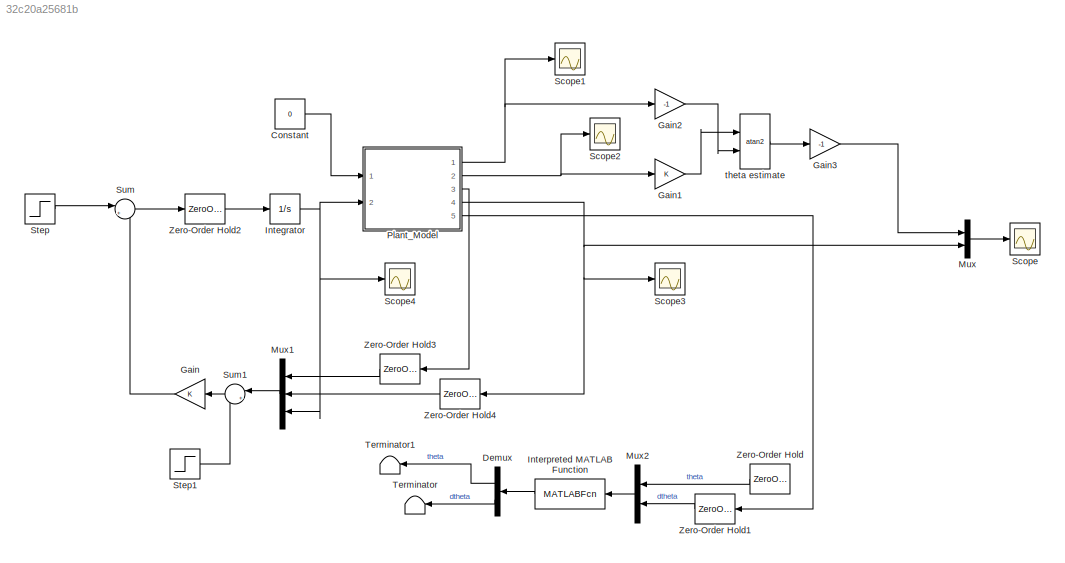
MODEL slx_32c20a25681b
KIND model
CONFIG AbsTol = auto
CONFIG EnableMultiTasking = off
CONFIG FixedStep = auto
CONFIG MaxStep = auto
CONFIG MinStep = auto
CONFIG RelTol = 1e-3
CONFIG SampleTimeConstraint = Unconstrained
CONFIG Solver = VariableStepAuto
CONFIG SolverName = VariableStepAuto
CONFIG StartTime = 0.0
CONFIG StopTime = 60
BLOCK [Constant] Constant
  Value = 0
BLOCK [Demux] Demux
  DisplayOption = bar
  Outputs = 2
  Ports = [1, 2]
BLOCK [Gain] Gain
  Gain = K
  Multiplication = Matrix(K*u)
  OutDataTypeStr = Inherit: Inherit via internal rule
  ParamDataTypeStr = Inherit: Inherit via internal rule
  SaturateOnIntegerOverflow = off
BLOCK [Gain] Gain1
  OutDataTypeStr = Inherit: Inherit via internal rule
  ParamDataTypeStr = Inherit: Inherit via internal rule
  SaturateOnIntegerOverflow = off
BLOCK [Gain] Gain2
  Gain = -1
  OutDataTypeStr = Inherit: Inherit via internal rule
  ParamDataTypeStr = Inherit: Inherit via internal rule
  SaturateOnIntegerOverflow = off
BLOCK [Gain] Gain3
  Gain = -1
  OutDataTypeStr = Inherit: Inherit via internal rule
  ParamDataTypeStr = Inherit: Inherit via internal rule
  SaturateOnIntegerOverflow = off
BLOCK [Integrator] Integrator
  Ports = [1, 1]
BLOCK [MATLABFcn] Interpreted MATLAB Function
  Commented = on
  MATLABFcn = Kalman_Filter
  Output1D = off
  OutputDimensions = [2 1]
  Ports = [1, 1]
BLOCK [Mux] Mux
  DisplayOption = bar
  Inputs = 2
  Ports = [2, 1]
BLOCK [Mux] Mux1
  DisplayOption = bar
  Inputs = 3
  Ports = [3, 1]
BLOCK [Mux] Mux2
  DisplayOption = bar
  Inputs = 2
  Ports = [2, 1]
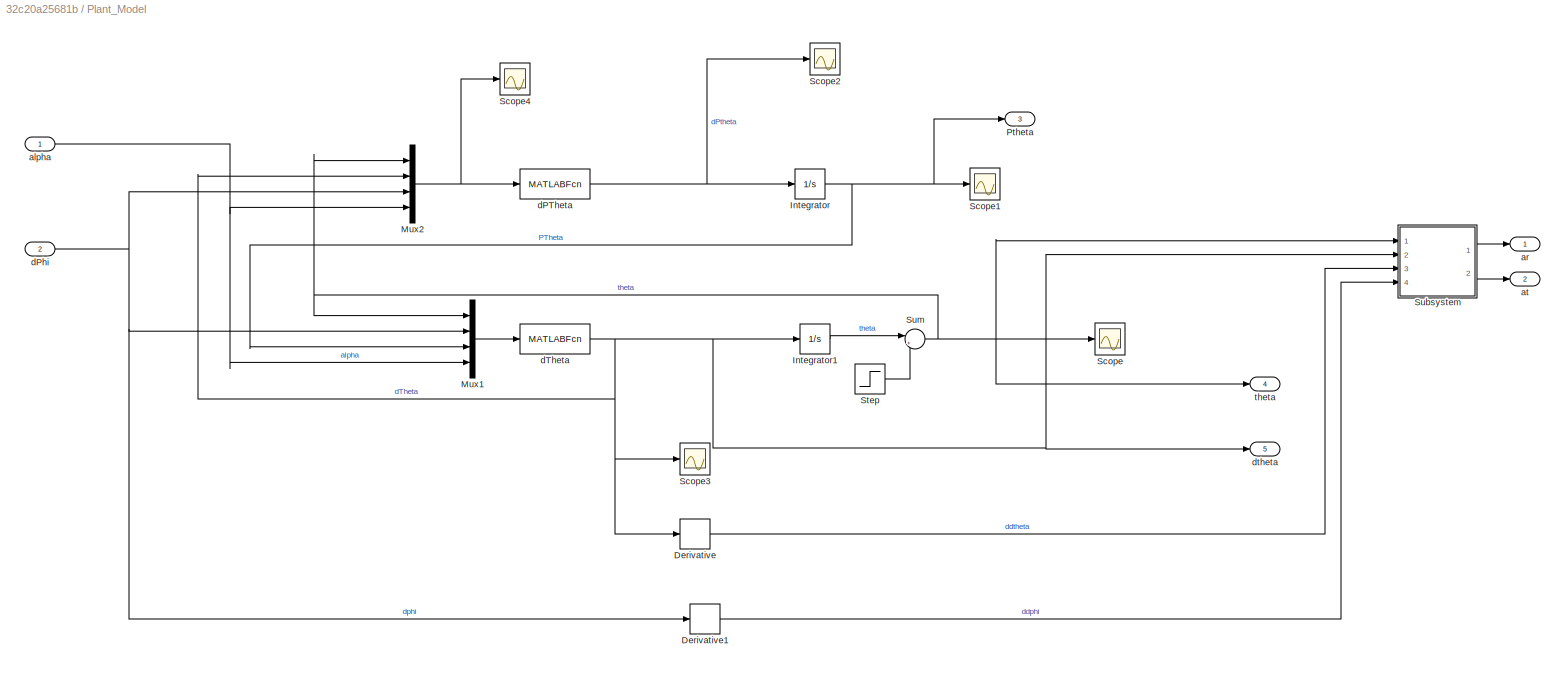
BLOCK [SubSystem] Plant_Model
  Ports = [2, 5]
  RequestExecContextInheritance = off
  Variant = off
BLOCK [Derivative] Plant_Model/Derivative
BLOCK [Derivative] Plant_Model/Derivative1
BLOCK [Integrator] Plant_Model/Integrator
  InitialCondition = Ptheta0
  Ports = [1, 1]
BLOCK [Integrator] Plant_Model/Integrator1
  InitialCondition = 0.1
  Ports = [1, 1]
BLOCK [Mux] Plant_Model/Mux1
  DisplayOption = bar
  Inputs = [1 1 1 1]
  Ports = [4, 1]
BLOCK [Mux] Plant_Model/Mux2
  DisplayOption = bar
  Inputs = [1 1 1 1]
  Ports = [4, 1]
BLOCK [Outport] Plant_Model/Ptheta
  IconDisplay = Port number
  Port = 3
  PortDimensions = [1 1]
BLOCK [Scope] Plant_Model/Scope
  NumInputPorts = 1
  Ports = [1]
  ScopeSpecificationString = Simulink.scopes.TimeScopeBlockCfg('CurrentConfiguration', extmgr.ConfigurationSet(extmgr.Configuration('Core','General UI',true),extmgr.Configuration('Core','Source UI',true),extmgr.Configuration('Sources','WiredSimulink',true),extmgr.Configuration('Visuals','Time Domain',true,'SerializedDisplays',{struct('MinYLimReal','-0.02893','MaxYLimReal','0.11433','YLabelReal','','MinYLimMag','0.00000','MaxY...<+1385ch>
BLOCK [Scope] Plant_Model/Scope1
  NumInputPorts = 1
  Ports = [1]
  ScopeSpecificationString = Simulink.scopes.TimeScopeBlockCfg('CurrentConfiguration', extmgr.ConfigurationSet(extmgr.Configuration('Core','General UI',true),extmgr.Configuration('Core','Source UI',true),extmgr.Configuration('Sources','WiredSimulink',true,'DataLoggingVariableName','ScopeData1'),extmgr.Configuration('Visuals','Time Domain',true,'SerializedDisplays',{struct('MinYLimReal','-195963.3993','MaxYLimReal','248154.423...<+1462ch>
BLOCK [Scope] Plant_Model/Scope2
  NumInputPorts = 1
  Ports = [1]
  ScopeSpecificationString = Simulink.scopes.TimeScopeBlockCfg('CurrentConfiguration', extmgr.ConfigurationSet(extmgr.Configuration('Core','General UI',true),extmgr.Configuration('Core','Source UI',true),extmgr.Configuration('Sources','WiredSimulink',true,'DataLoggingVariableName','ScopeData2'),extmgr.Configuration('Visuals','Time Domain',true,'SerializedDisplays',{struct('MinYLimReal','-2761470967.33558','MaxYLimReal','27610...<+1463ch>
BLOCK [Scope] Plant_Model/Scope3
  NumInputPorts = 1
  Ports = [1]
  ScopeSpecificationString = Simulink.scopes.TimeScopeBlockCfg('CurrentConfiguration', extmgr.ConfigurationSet(extmgr.Configuration('Core','General UI',true),extmgr.Configuration('Core','Source UI',true),extmgr.Configuration('Sources','WiredSimulink',true,'DataLoggingVariableName','ScopeData3'),extmgr.Configuration('Visuals','Time Domain',true,'SerializedDisplays',{struct('MinYLimReal','-40470802508.94521','MaxYLimReal','3642...<+1478ch>
BLOCK [Scope] Plant_Model/Scope4
  NumInputPorts = 1
  Ports = [1]
  ScopeSpecificationString = Simulink.scopes.TimeScopeBlockCfg('CurrentConfiguration', extmgr.ConfigurationSet(extmgr.Configuration('Core','General UI',true),extmgr.Configuration('Core','Source UI',true),extmgr.Configuration('Sources','WiredSimulink',true,'DataLoggingVariableName','ScopeData6'),extmgr.Configuration('Visuals','Time Domain',true,'SerializedDisplays',{struct('MinYLimReal','-53041074534.89084','MaxYLimReal','4773...<+1495ch>
BLOCK [Step] Plant_Model/Step
  After = .1
  SampleTime = 0
  Time = 10
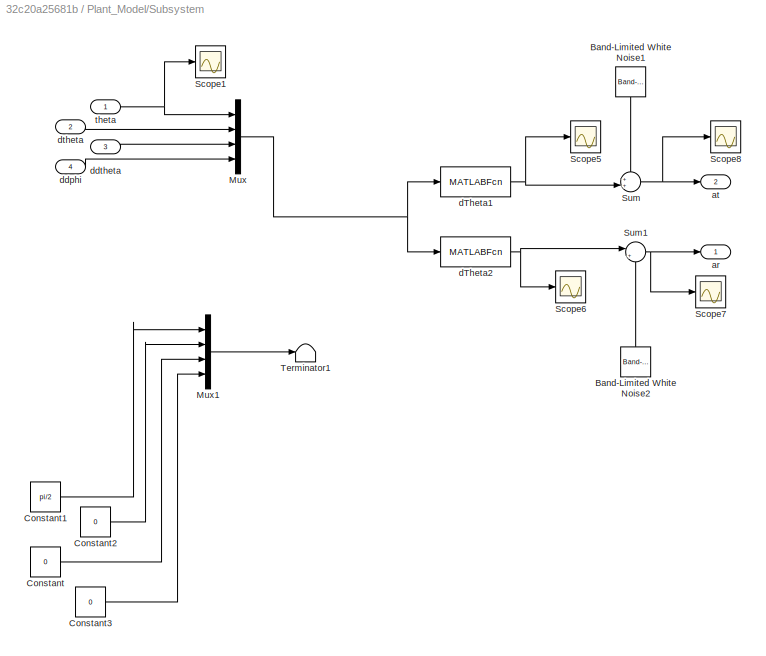
BLOCK [SubSystem] Plant_Model/Subsystem
  Ports = [4, 2]
  RequestExecContextInheritance = off
  Variant = off
BLOCK [Reference] Plant_Model/Subsystem/Band-Limited White Noise1  REF=simulink/Sources/Band-Limited
White Noise
  Commented = on
  Ports = [0, 1]
  SourceBlock = simulink/Sources/Band-Limited\nWhite Noise
  SourceProductBaseCode = SL
  SourceProductName = Simulink
  SourceType = Band-Limited White Noise.
BLOCK [Reference] Plant_Model/Subsystem/Band-Limited White Noise2  REF=simulink/Sources/Band-Limited
White Noise
  Commented = on
  Ports = [0, 1]
  SourceBlock = simulink/Sources/Band-Limited\nWhite Noise
  SourceProductBaseCode = SL
  SourceProductName = Simulink
  SourceType = Band-Limited White Noise.
BLOCK [Constant] Plant_Model/Subsystem/Constant
  Value = 0
BLOCK [Constant] Plant_Model/Subsystem/Constant1
  Value = pi/2
BLOCK [Constant] Plant_Model/Subsystem/Constant2
  Value = 0
BLOCK [Constant] Plant_Model/Subsystem/Constant3
  Value = 0
BLOCK [Mux] Plant_Model/Subsystem/Mux
  DisplayOption = bar
  Ports = [4, 1]
BLOCK [Mux] Plant_Model/Subsystem/Mux1
  DisplayOption = bar
  Ports = [4, 1]
BLOCK [Scope] Plant_Model/Subsystem/Scope1
  NumInputPorts = 1
  Ports = [1]
  ScopeSpecificationString = Simulink.scopes.TimeScopeBlockCfg('CurrentConfiguration', extmgr.ConfigurationSet(extmgr.Configuration('Core','General UI',true),extmgr.Configuration('Core','Source UI',true),extmgr.Configuration('Sources','WiredSimulink',true,'DataLoggingVariableName','ScopeData1'),extmgr.Configuration('Visuals','Time Domain',true,'SerializedDisplays',{struct('MinYLimReal','-1.00000','MaxYLimReal','1.00000','YLab...<+1469ch>
BLOCK [Scope] Plant_Model/Subsystem/Scope5
  NumInputPorts = 1
  Ports = [1]
  ScopeSpecificationString = Simulink.scopes.TimeScopeBlockCfg('CurrentConfiguration', extmgr.ConfigurationSet(extmgr.Configuration('Core','General UI',true),extmgr.Configuration('Core','Source UI',true),extmgr.Configuration('Sources','WiredSimulink',true,'DataLoggingVariableName','ScopeData1'),extmgr.Configuration('Visuals','Time Domain',true,'SerializedDisplays',{struct('MinYLimReal','-1.00000','MaxYLimReal','1.00000','YLab...<+1470ch>
BLOCK [Scope] Plant_Model/Subsystem/Scope6
  NumInputPorts = 1
  Ports = [1]
  ScopeSpecificationString = Simulink.scopes.TimeScopeBlockCfg('CurrentConfiguration', extmgr.ConfigurationSet(extmgr.Configuration('Core','General UI',true),extmgr.Configuration('Core','Source UI',true),extmgr.Configuration('Sources','WiredSimulink',true,'DataLoggingVariableName','ScopeData2'),extmgr.Configuration('Visuals','Time Domain',true,'SerializedDisplays',{struct('MinYLimReal','9.62428','MaxYLimReal','9.9909','YLabel...<+1416ch>
BLOCK [Scope] Plant_Model/Subsystem/Scope7
  NumInputPorts = 1
  Ports = [1]
  ScopeSpecificationString = Simulink.scopes.TimeScopeBlockCfg('CurrentConfiguration', extmgr.ConfigurationSet(extmgr.Configuration('Core','General UI',true),extmgr.Configuration('Core','Source UI',true),extmgr.Configuration('Sources','WiredSimulink',true,'DataLoggingVariableName','ScopeData1'),extmgr.Configuration('Visuals','Time Domain',true,'SerializedDisplays',{struct('MinYLimReal','9.62428','MaxYLimReal','9.9909','YLabel...<+1413ch>
BLOCK [Scope] Plant_Model/Subsystem/Scope8
  NumInputPorts = 1
  Ports = [1]
  ScopeSpecificationString = Simulink.scopes.TimeScopeBlockCfg('CurrentConfiguration', extmgr.ConfigurationSet(extmgr.Configuration('Core','General UI',true),extmgr.Configuration('Core','Source UI',true),extmgr.Configuration('Sources','WiredSimulink',true,'DataLoggingVariableName','ScopeData2'),extmgr.Configuration('Visuals','Time Domain',true,'SerializedDisplays',{struct('MinYLimReal','-3680.30195','MaxYLimReal','33112.92392...<+1444ch>
BLOCK [Sum] Plant_Model/Subsystem/Sum
  IconShape = round
  InputSameDT = off
  Inputs = ++|
  OutDataTypeStr = Inherit: Inherit via internal rule
  Ports = [2, 1]
  SaturateOnIntegerOverflow = off
BLOCK [Sum] Plant_Model/Subsystem/Sum1
  IconShape = round
  InputSameDT = off
  Inputs = |++
  OutDataTypeStr = Inherit: Inherit via internal rule
  Ports = [2, 1]
  SaturateOnIntegerOverflow = off
BLOCK [Terminator] Plant_Model/Subsystem/Terminator1
BLOCK [Outport] Plant_Model/Subsystem/ar
  IconDisplay = Port number
  PortDimensions = [1 1]
BLOCK [Outport] Plant_Model/Subsystem/at
  IconDisplay = Port number
  Port = 2
  PortDimensions = [1 1]
BLOCK [MATLABFcn] Plant_Model/Subsystem/dTheta1
  MATLABFcn = Eqn3
  Output1D = off
  OutputDimensions = [1 1]
  Ports = [1, 1]
BLOCK [MATLABFcn] Plant_Model/Subsystem/dTheta2
  MATLABFcn = Eqn4
  Output1D = off
  OutputDimensions = [1 1]
  Ports = [1, 1]
BLOCK [Inport] Plant_Model/Subsystem/ddphi
  IconDisplay = Port number
  Port = 4
BLOCK [Inport] Plant_Model/Subsystem/ddtheta
  IconDisplay = Port number
  Port = 3
BLOCK [Inport] Plant_Model/Subsystem/dtheta
  IconDisplay = Port number
  Port = 2
BLOCK [Inport] Plant_Model/Subsystem/theta
  IconDisplay = Port number
BLOCK [Sum] Plant_Model/Sum
  IconShape = round
  InputSameDT = off
  Inputs = |++
  OutDataTypeStr = Inherit: Inherit via internal rule
  Ports = [2, 1]
  SaturateOnIntegerOverflow = off
BLOCK [Inport] Plant_Model/alpha 
  IconDisplay = Port number
BLOCK [Outport] Plant_Model/ar
  IconDisplay = Port number
  PortDimensions = [1 1]
BLOCK [Outport] Plant_Model/at
  IconDisplay = Port number
  Port = 2
  PortDimensions = [1 1]
BLOCK [MATLABFcn] Plant_Model/dPTheta
  MATLABFcn = Eqn1
  Output1D = off
  OutputDimensions = [1 1]
  Ports = [1, 1]
BLOCK [Inport] Plant_Model/dPhi
  IconDisplay = Port number
  Port = 2
BLOCK [MATLABFcn] Plant_Model/dTheta
  MATLABFcn = Eqn2
  Output1D = off
  OutputDimensions = [1 1]
  Ports = [1, 1]
BLOCK [Outport] Plant_Model/dtheta
  IconDisplay = Port number
  Port = 5
  PortDimensions = [1 1]
BLOCK [Outport] Plant_Model/theta
  IconDisplay = Port number
  Port = 4
  PortDimensions = [1 1]
BLOCK [Scope] Scope
  NumInputPorts = 1
  Ports = [1]
  ScopeSpecificationString = Simulink.scopes.TimeScopeBlockCfg('CurrentConfiguration', extmgr.ConfigurationSet(extmgr.Configuration('Core','General UI',true),extmgr.Configuration('Core','Source UI',true),extmgr.Configuration('Sources','WiredSimulink',true),extmgr.Configuration('Visuals','Time Domain',true,'SerializedDisplays',{struct('MinYLimReal','-0.04178','MaxYLimReal','0.21235','YLabelReal','','MinYLimMag','0.00000','MaxY...<+1425ch>
BLOCK [Scope] Scope1
  NumInputPorts = 1
  Ports = [1]
  ScopeSpecificationString = Simulink.scopes.TimeScopeBlockCfg('CurrentConfiguration', extmgr.ConfigurationSet(extmgr.Configuration('Core','General UI',true),extmgr.Configuration('Core','Source UI',true),extmgr.Configuration('Sources','WiredSimulink',true,'DataLoggingVariableName','ScopeData1'),extmgr.Configuration('Visuals','Time Domain',true,'SerializedDisplays',{struct('MinYLimReal','-9.82922','MaxYLimReal','-9.63701','YLa...<+1454ch>
BLOCK [Scope] Scope2
  NumInputPorts = 1
  Ports = [1]
  ScopeSpecificationString = Simulink.scopes.TimeScopeBlockCfg('CurrentConfiguration', extmgr.ConfigurationSet(extmgr.Configuration('Core','General UI',true),extmgr.Configuration('Core','Source UI',true),extmgr.Configuration('Sources','WiredSimulink',true,'DataLoggingVariableName','ScopeData2'),extmgr.Configuration('Visuals','Time Domain',true,'SerializedDisplays',{struct('MinYLimReal','-3680.30195','MaxYLimReal','33112.92392...<+1459ch>
BLOCK [Scope] Scope3
  NumInputPorts = 1
  Ports = [1]
  ScopeSpecificationString = Simulink.scopes.TimeScopeBlockCfg('CurrentConfiguration', extmgr.ConfigurationSet(extmgr.Configuration('Core','General UI',true),extmgr.Configuration('Core','Source UI',true),extmgr.Configuration('Sources','WiredSimulink',true,'DataLoggingVariableName','ScopeData3'),extmgr.Configuration('Visuals','Time Domain',true,'SerializedDisplays',{struct('MinYLimReal','-0.02893','MaxYLimReal','0.11433','YLab...<+1437ch>
BLOCK [Scope] Scope4
  NumInputPorts = 1
  Ports = [1]
  ScopeSpecificationString = Simulink.scopes.TimeScopeBlockCfg('CurrentConfiguration', extmgr.ConfigurationSet(extmgr.Configuration('Core','General UI',true),extmgr.Configuration('Core','Source UI',true),extmgr.Configuration('Sources','WiredSimulink',true,'DataLoggingVariableName','ScopeData4'),extmgr.Configuration('Visuals','Time Domain',true,'SerializedDisplays',{struct('MinYLimReal','-0.17778','MaxYLimReal','1.60004','YLab...<+1430ch>
BLOCK [Step] Step
  After = stepInput
  SampleTime = 0
  Time = 10
BLOCK [Step] Step1
  After = 0
  SampleTime = 0
  Time = 10
BLOCK [Sum] Sum
  IconShape = round
  InputSameDT = off
  Inputs = |+-
  OutDataTypeStr = Inherit: Inherit via internal rule
  Ports = [2, 1]
  SaturateOnIntegerOverflow = off
BLOCK [Sum] Sum1
  IconShape = round
  InputSameDT = off
  Inputs = |++
  OutDataTypeStr = Inherit: Inherit via internal rule
  Ports = [2, 1]
  SaturateOnIntegerOverflow = off
BLOCK [Terminator] Terminator
BLOCK [Terminator] Terminator1
BLOCK [ZeroOrderHold] Zero-Order Hold
  SampleTime = 0.01
BLOCK [ZeroOrderHold] Zero-Order Hold1
  SampleTime = 0.01
BLOCK [ZeroOrderHold] Zero-Order Hold2
  SampleTime = 0.01
BLOCK [ZeroOrderHold] Zero-Order Hold3
  SampleTime = 0.01
BLOCK [ZeroOrderHold] Zero-Order Hold4
  SampleTime = 0.01
BLOCK [Trigonometry] theta estimate
  Operator = atan2
  OutputSignalType = real
  Ports = [2, 1]
LINE Constant:1 -> Plant_Model:1
LINE Demux:1 -> Terminator1:1
LINE Demux:2 -> Terminator:1
LINE Gain1:1 -> theta estimate:1
LINE Gain2:1 -> theta estimate:2
LINE Gain3:1 -> Mux:1
LINE Gain:1 -> Sum:2
NET Integrator:1 -> Mux1:3, Plant_Model:2, Scope4:1
LINE Interpreted MATLAB Function:1 -> Demux:1
LINE Mux1:1 -> Sum1:1
LINE Mux2:1 -> Interpreted MATLAB Function:1
LINE Mux:1 -> Scope:1
LINE Plant_Model/Derivative1:1 -> Plant_Model/Subsystem:4
LINE Plant_Model/Derivative:1 -> Plant_Model/Subsystem:3
LINE Plant_Model/Integrator1:1 -> Plant_Model/Sum:1
NET Plant_Model/Integrator:1 -> Plant_Model/Mux1:3, Plant_Model/Ptheta:1, Plant_Model/Scope1:1
LINE Plant_Model/Mux1:1 -> Plant_Model/dTheta:1
NET Plant_Model/Mux2:1 -> Plant_Model/Scope4:1, Plant_Model/dPTheta:1
LINE Plant_Model/Step:1 -> Plant_Model/Sum:2
LINE Plant_Model/Subsystem/Band-Limited White Noise1:1 -> Plant_Model/Subsystem/Sum:1
LINE Plant_Model/Subsystem/Band-Limited White Noise2:1 -> Plant_Model/Subsystem/Sum1:2
LINE Plant_Model/Subsystem/Constant1:1 -> Plant_Model/Subsystem/Mux1:1
LINE Plant_Model/Subsystem/Constant2:1 -> Plant_Model/Subsystem/Mux1:2
LINE Plant_Model/Subsystem/Constant3:1 -> Plant_Model/Subsystem/Mux1:4
LINE Plant_Model/Subsystem/Constant:1 -> Plant_Model/Subsystem/Mux1:3
LINE Plant_Model/Subsystem/Mux1:1 -> Plant_Model/Subsystem/Terminator1:1
NET Plant_Model/Subsystem/Mux:1 -> Plant_Model/Subsystem/dTheta1:1, Plant_Model/Subsystem/dTheta2:1
NET Plant_Model/Subsystem/Sum1:1 -> Plant_Model/Subsystem/Scope7:1, Plant_Model/Subsystem/ar:1
NET Plant_Model/Subsystem/Sum:1 -> Plant_Model/Subsystem/Scope8:1, Plant_Model/Subsystem/at:1
NET Plant_Model/Subsystem/dTheta1:1 -> Plant_Model/Subsystem/Scope5:1, Plant_Model/Subsystem/Sum:2
NET Plant_Model/Subsystem/dTheta2:1 -> Plant_Model/Subsystem/Scope6:1, Plant_Model/Subsystem/Sum1:1
LINE Plant_Model/Subsystem/ddphi:1 -> Plant_Model/Subsystem/Mux:4
LINE Plant_Model/Subsystem/ddtheta:1 -> Plant_Model/Subsystem/Mux:3
LINE Plant_Model/Subsystem/dtheta:1 -> Plant_Model/Subsystem/Mux:2
NET Plant_Model/Subsystem/theta:1 -> Plant_Model/Subsystem/Mux:1, Plant_Model/Subsystem/Scope1:1
LINE Plant_Model/Subsystem:1 -> Plant_Model/ar:1
LINE Plant_Model/Subsystem:2 -> Plant_Model/at:1
NET Plant_Model/Sum:1 -> Plant_Model/Mux1:1, Plant_Model/Mux2:1, Plant_Model/Scope:1, Plant_Model/Subsystem:1, Plant_Model/theta:1
NET Plant_Model/alpha :1 -> Plant_Model/Mux1:4, Plant_Model/Mux2:4
NET Plant_Model/dPTheta:1 -> Plant_Model/Integrator:1, Plant_Model/Scope2:1
NET Plant_Model/dPhi:1 -> Plant_Model/Derivative1:1, Plant_Model/Mux1:2, Plant_Model/Mux2:3
NET Plant_Model/dTheta:1 -> Plant_Model/Derivative:1, Plant_Model/Integrator1:1, Plant_Model/Mux2:2, Plant_Model/Scope3:1, Plant_Model/Subsystem:2, Plant_Model/dtheta:1
NET Plant_Model:1 -> Gain2:1, Scope1:1
NET Plant_Model:2 -> Gain1:1, Scope2:1
LINE Plant_Model:3 -> Zero-Order Hold3:1
NET Plant_Model:4 -> Mux:2, Scope3:1, Zero-Order Hold4:1
LINE Plant_Model:5 -> Zero-Order Hold1:1
LINE Step1:1 -> Sum1:2
LINE Step:1 -> Sum:1
LINE Sum1:1 -> Gain:1
LINE Sum:1 -> Zero-Order Hold2:1
LINE Zero-Order Hold1:1 -> Mux2:2
LINE Zero-Order Hold2:1 -> Integrator:1
LINE Zero-Order Hold3:1 -> Mux1:1
LINE Zero-Order Hold4:1 -> Mux1:2
LINE Zero-Order Hold:1 -> Mux2:1
LINE theta estimate:1 -> Gain3:1
note: NET lines group one-source signal fan-out (src -> all destinations, sorted); 1:1 wires keep LINE
